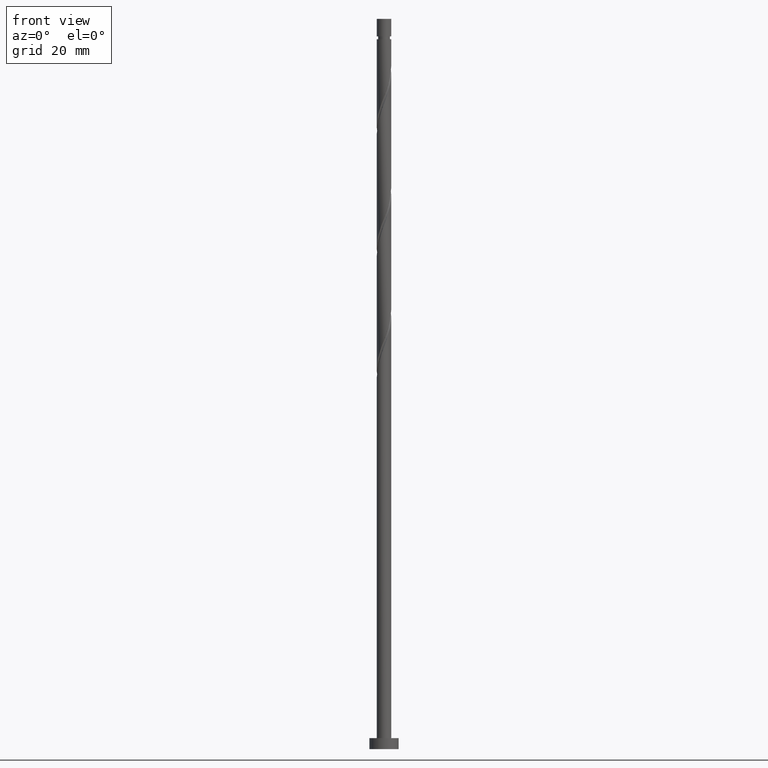
[diagram: clean part render]
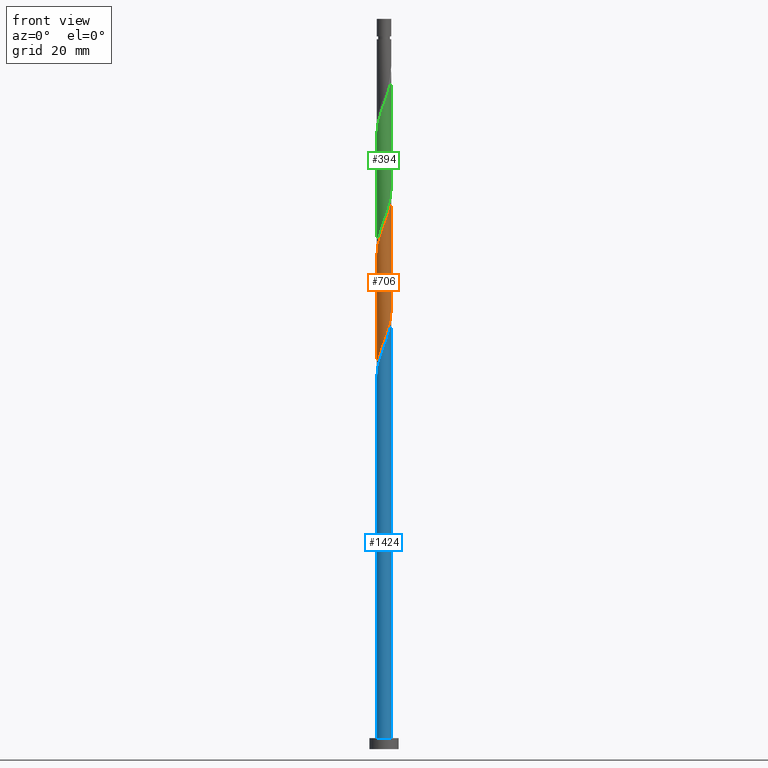
[diagram: same view with three faces highlighted in distinct colors, each labeled with its STEP entity id]
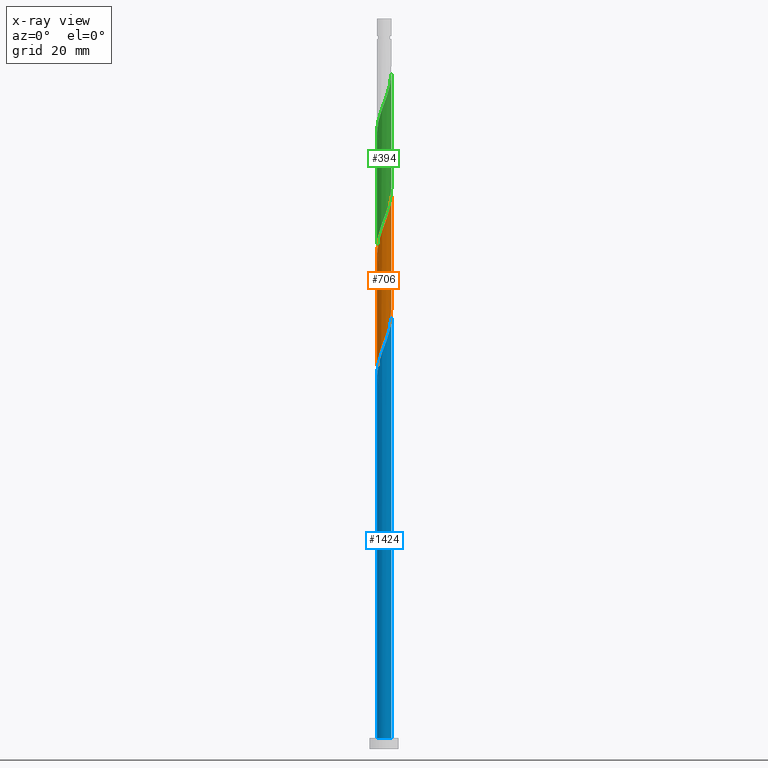
[diagram: x-ray of the same camera — body ghosted, the three highlighted faces saturated]
A machine part, front view with three faces highlighted in distinct colors.
The next image is the same camera in x-ray (body ghosted, the three faces saturated) — at least one of them is partly hidden behind the body in this view.
Their STEP definitions:

[orange] entity #706 — the highlighted cylindrical surface (edge-blend (fillet) strip) has radius 2 mm, axis along (-0, -0, -1).
#69 = EDGE_CURVE ( 'NONE', #420, #1318, #720, .T. ) ;
#105 = CARTESIAN_POINT ( 'NONE',  ( 0.1399560795713519490, -2.012397032465270019, 143.7130290469707177 ) ) ;
#115 = ORIENTED_EDGE ( 'NONE', *, *, #445, .T. ) ;
#129 = CARTESIAN_POINT ( 'NONE',  ( 1.521943481029064404, -1.324015695162690243, 147.8796957136374033 ) ) ;
#226 = CARTESIAN_POINT ( 'NONE',  ( -1.790205940182200139, -0.8917189533347237296, 137.4630290469706893 ) ) ;
#245 = CARTESIAN_POINT ( 'NONE',  ( -2.000000000000000444, -0.06148390331534520775, 103.9675371679866913 ) ) ;
#247 = CARTESIAN_POINT ( 'NONE',  ( 0.6560338701139447615, -1.907602967534735017, 145.1019179358596318 ) ) ;
#255 = CARTESIAN_POINT ( 'NONE',  ( -2.000000000000002220, 4.067429368664605239E-15, 135.0105735028717504 ) ) ;
#264 = CARTESIAN_POINT ( 'NONE',  ( -2.000000000000003997, -0.2010075630518353140, 135.5439998720609935 ) ) ;
#341 = VERTEX_POINT ( 'NONE', #1520 ) ;
#382 = CARTESIAN_POINT ( 'NONE',  ( -0.1399560795713533645, -2.012397032465267355, 111.7685846025262606 ) ) ;
#405 = ORIENTED_EDGE ( 'NONE', *, *, #1484, .F. ) ;
#410 = CARTESIAN_POINT ( 'NONE',  ( -1.498412303996177641, -1.324673758792283218, 138.8519179358595750 ) ) ;
#411 = CARTESIAN_POINT ( 'NONE',  ( 1.790205940182196809, -0.8917189533347242847, 118.0185846025262464 ) ) ;
#420 = VERTEX_POINT ( 'NONE', #1224 ) ;
#445 = EDGE_CURVE ( 'NONE', #528, #1318, #1110, .T. ) ;
#496 = CARTESIAN_POINT ( 'NONE',  ( -0.3979949748426488410, -1.959999999999999964, 111.0741401580817893 ) ) ;
#499 = ORIENTED_EDGE ( 'NONE', *, *, #1592, .F. ) ;
#503 = CARTESIAN_POINT ( 'NONE',  ( -1.996223298870949847, -0.1228517034671581104, 104.1296957136373322 ) ) ;
#505 = CARTESIAN_POINT ( 'NONE',  ( -0.6353262412077195220, -1.896407278838825983, 141.6296957136373749 ) ) ;
#526 = CARTESIAN_POINT ( 'NONE',  ( 1.324673758792283218, -1.498412303996177863, 147.1852512691929178 ) ) ;
#528 = VERTEX_POINT ( 'NONE', #736 ) ;
#546 = DIRECTION ( 'NONE',  ( -0.000000000000000000, -0.000000000000000000, -1.000000000000000000 ) ) ;
#547 = DIRECTION ( 'NONE',  ( -0.000000000000000000, -0.000000000000000000, -1.000000000000000000 ) ) ;
#554 = LINE ( 'NONE', #1487, #848 ) ;
#556 = DIRECTION ( 'NONE',  ( -0.000000000000000000, -0.000000000000000000, -1.000000000000000000 ) ) ;
#629 = CARTESIAN_POINT ( 'NONE',  ( -1.127404036555501810, -1.672808912829662820, 108.9908068247484891 ) ) ;
#632 = CARTESIAN_POINT ( 'NONE',  ( -1.907602967534735017, -0.6560338701139448725, 136.7685846025262606 ) ) ;
#640 = CARTESIAN_POINT ( 'NONE',  ( 1.127404036555501810, -1.672808912829665484, 146.4908068247484323 ) ) ;
#648 = CARTESIAN_POINT ( 'NONE',  ( -1.667354236715039129, -1.104504345536226451, 106.9074734914151179 ) ) ;
#650 = CARTESIAN_POINT ( 'NONE',  ( -0.8849929959097677656, -1.812764992401017849, 140.9352512691928894 ) ) ;
#656 = CARTESIAN_POINT ( 'NONE',  ( 1.980049565276634782, -0.3856594865056713894, 150.6574734914150895 ) ) ;
#663 = CARTESIAN_POINT ( 'NONE',  ( 1.896407278838825983, -0.6353262412077195220, 149.9630290469706893 ) ) ;
#664 = CARTESIAN_POINT ( 'NONE',  ( 2.000000000000000888, -0.2010075630518416978, 119.9376137774359705 ) ) ;
#706 = ADVANCED_FACE ( 'NONE', ( #1362 ), #1086, .T. ) ;
#720 =( BOUNDED_CURVE ( )  B_SPLINE_CURVE ( 2, ( #1514, #664, #1200, #1749, #411, #735, #881, #1669, #841, #907, #1713, #753, #923, #382, #496, #916, #1466, #629, #1018, #1027, #648, #1567, #1166, #1033, #503, #245, #1734 ),
 .UNSPECIFIED., .F., .T. ) 
 B_SPLINE_CURVE_WITH_KNOTS ( ( 3, 2, 2, 2, 2, 2, 2, 2, 2, 2, 2, 2, 2, 3 ),
 ( 0.8045317669814462391, 0.8125000000000000000, 0.8229166666666666297, 0.8333333333333333703, 0.8437500000000000000, 0.8541666666666666297, 0.8645833333333333703, 0.8750000000000000000, 0.8854166666666666297, 0.8958333333333333703, 0.9062500000000000000, 0.9166666666666666297, 0.9270833333333333703, 0.9295317669814463502 ),
 .UNSPECIFIED. ) 
 CURVE ( )  GEOMETRIC_REPRESENTATION_ITEM ( )  RATIONAL_B_SPLINE_CURVE ( ( 0.9062941362546530488, 0.9031415850403572421, 0.9090909090909328194, 0.9013135103398510761, 0.9090909090909328194, 0.9013135103398510761, 0.9090909090909328194, 0.9013135103398510761, 0.9090909090909328194, 0.9013135103398510761, 0.9090909090909328194, 0.9013135103398510761, 0.9090909090909328194, 0.9013135103398510761, 0.9090909090909328194, 0.9013135103398510761, 0.9090909090909328194, 0.9013135103398510761, 0.9090909090909328194, 0.9013135103398510761, 0.9090909090909328194, 0.9013135103398510761, 0.9090909090909328194, 0.9013135103398510761, 0.9090909090909328194, 0.9072628343904264314, 0.9062941362546529378 ) ) 
 REPRESENTATION_ITEM ( '' )  );
#735 = CARTESIAN_POINT ( 'NONE',  ( 1.672808912829662153, -1.127404036555502254, 117.3241401580817893 ) ) ;
#736 = CARTESIAN_POINT ( 'NONE',  ( -2.000000000000002220, 4.067429368664605239E-15, 135.0105735028717504 ) ) ;
#753 = CARTESIAN_POINT ( 'NONE',  ( 0.3856594865056683918, -1.980049565276633228, 113.1574734914151463 ) ) ;
#766 = CARTESIAN_POINT ( 'NONE',  ( 2.000000000000002665, -0.06148390331534327874, 151.5140764815102727 ) ) ;
#795 =( BOUNDED_CURVE ( )  B_SPLINE_CURVE ( 2, ( #255, #264, #1439, #632, #226, #1324, #410, #1585, #1199, #650, #505, #1736, #1170, #105, #1176, #247, #1748, #640, #526, #129, #801, #1620, #663, #656, #1614, #766, #1295 ),
 .UNSPECIFIED., .F., .T. ) 
 B_SPLINE_CURVE_WITH_KNOTS ( ( 3, 2, 2, 2, 2, 2, 2, 2, 2, 2, 2, 2, 2, 3 ),
 ( 0.3045317669814460171, 0.3125000000000000000, 0.3229166666666666297, 0.3333333333333333703, 0.3437500000000000000, 0.3541666666666666297, 0.3645833333333333703, 0.3750000000000000000, 0.3854166666666666297, 0.3958333333333333703, 0.4062500000000000000, 0.4166666666666666297, 0.4270833333333333703, 0.4295317669814465167 ),
 .UNSPECIFIED. ) 
 CURVE ( )  GEOMETRIC_REPRESENTATION_ITEM ( )  RATIONAL_B_SPLINE_CURVE ( ( 0.9062941362546574897, 0.9031415850403614609, 0.9090909090909370383, 0.9013135103398555170, 0.9090909090909370383, 0.9013135103398555170, 0.9090909090909370383, 0.9013135103398555170, 0.9090909090909370383, 0.9013135103398555170, 0.9090909090909370383, 0.9013135103398555170, 0.9090909090909370383, 0.9013135103398555170, 0.9090909090909370383, 0.9013135103398555170, 0.9090909090909370383, 0.9013135103398555170, 0.9090909090909370383, 0.9013135103398555170, 0.9090909090909370383, 0.9013135103398555170, 0.9090909090909370383, 0.9013135103398555170, 0.9090909090909370383, 0.9072628343904306503, 0.9062941362546571566 ) ) 
 REPRESENTATION_ITEM ( '' )  );
#801 = CARTESIAN_POINT ( 'NONE',  ( 1.667354236715040683, -1.104504345536229559, 148.5741401580818604 ) ) ;
#802 = ORIENTED_EDGE ( 'NONE', *, *, #69, .F. ) ;
#841 = CARTESIAN_POINT ( 'NONE',  ( 1.104504345536225784, -1.667354236715039795, 115.2408068247484891 ) ) ;
#848 = VECTOR ( 'NONE', #547, 1000.000000000000000 ) ;
#881 = CARTESIAN_POINT ( 'NONE',  ( 1.498412303996174977, -1.324673758792282774, 116.6296957136373607 ) ) ;
#907 = CARTESIAN_POINT ( 'NONE',  ( 0.8849929959097652121, -1.812764992401016295, 114.5463623803040321 ) ) ;
#916 = CARTESIAN_POINT ( 'NONE',  ( -0.6560338701139453166, -1.907602967534732574, 110.3796957136373464 ) ) ;
#923 = CARTESIAN_POINT ( 'NONE',  ( 0.1228517034671575414, -1.996223298870949847, 112.4630290469706893 ) ) ;
#979 = CARTESIAN_POINT ( 'NONE',  ( -2.000000000000000000, 0.000000000000000000, 200.0000000000000000 ) ) ;
#1018 = CARTESIAN_POINT ( 'NONE',  ( -1.324673758792282330, -1.498412303996174977, 108.2963623803040463 ) ) ;
#1027 = CARTESIAN_POINT ( 'NONE',  ( -1.521943481029063516, -1.324015695162687134, 107.6019179358595750 ) ) ;
#1033 = CARTESIAN_POINT ( 'NONE',  ( -1.980049565276633228, -0.3856594865056690025, 104.8241401580818177 ) ) ;
#1080 = DIRECTION ( 'NONE',  ( -1.000000000000000000, 0.000000000000000000, 0.000000000000000000 ) ) ;
#1086 = CYLINDRICAL_SURFACE ( 'NONE', #1378, 2.000000000000000000 ) ;
#1110 = LINE ( 'NONE', #979, #1701 ) ;
#1166 = CARTESIAN_POINT ( 'NONE',  ( -1.896407278838823762, -0.6353262412077173016, 105.5185846025262322 ) ) ;
#1170 = CARTESIAN_POINT ( 'NONE',  ( -0.1228517034671592761, -1.996223298870952290, 143.0185846025262322 ) ) ;
#1176 = CARTESIAN_POINT ( 'NONE',  ( 0.3979949748426485634, -1.960000000000002185, 144.4074734914151747 ) ) ;
#1199 = CARTESIAN_POINT ( 'NONE',  ( -1.104504345536228227, -1.667354236715041571, 140.2408068247485176 ) ) ;
#1200 = CARTESIAN_POINT ( 'NONE',  ( 1.959999999999999964, -0.3979949748426489520, 119.4074734914151179 ) ) ;
#1204 = CARTESIAN_POINT ( 'NONE',  ( 0.000000000000000000, 0.000000000000000000, 200.0000000000000000 ) ) ;
#1224 = CARTESIAN_POINT ( 'NONE',  ( 2.000000000000000000, 2.676727415407970149E-15, 120.4710401466252279 ) ) ;
#1273 = EDGE_LOOP ( 'NONE', ( #499, #405, #115, #802 ) ) ;
#1295 = CARTESIAN_POINT ( 'NONE',  ( 2.000000000000002220, 2.467374433197279073E-16, 151.6772401695384644 ) ) ;
#1318 = VERTEX_POINT ( 'NONE', #1575 ) ;
#1324 = CARTESIAN_POINT ( 'NONE',  ( -1.672808912829665484, -1.127404036555502032, 138.1574734914151747 ) ) ;
#1362 = FACE_OUTER_BOUND ( 'NONE', #1273, .T. ) ;
#1378 = AXIS2_PLACEMENT_3D ( 'NONE', #1204, #546, #1080 ) ;
#1439 = CARTESIAN_POINT ( 'NONE',  ( -1.960000000000002185, -0.3979949748426487854, 136.0741401580818035 ) ) ;
#1466 = CARTESIAN_POINT ( 'NONE',  ( -0.8917189533347235075, -1.790205940182196809, 109.6852512691929178 ) ) ;
#1484 = EDGE_CURVE ( 'NONE', #528, #341, #795, .T. ) ;
#1487 = CARTESIAN_POINT ( 'NONE',  ( 2.000000000000000000, 2.449293598294706414E-16, 200.0000000000000000 ) ) ;
#1514 = CARTESIAN_POINT ( 'NONE',  ( 2.000000000000000000, 2.676727415407970149E-15, 120.4710401466252279 ) ) ;
#1520 = CARTESIAN_POINT ( 'NONE',  ( 2.000000000000002220, 2.467374433197279566E-16, 151.6772401695384644 ) ) ;
#1567 = CARTESIAN_POINT ( 'NONE',  ( -1.812764992401016295, -0.8849929959097652121, 106.2130290469706750 ) ) ;
#1575 = CARTESIAN_POINT ( 'NONE',  ( -2.000000000000000444, 2.415036187644621267E-15, 103.8043734799585280 ) ) ;
#1585 = CARTESIAN_POINT ( 'NONE',  ( -1.324015695162690243, -1.521943481029064404, 139.5463623803040321 ) ) ;
#1592 = EDGE_CURVE ( 'NONE', #341, #420, #554, .T. ) ;
#1614 = CARTESIAN_POINT ( 'NONE',  ( 1.996223298870952290, -0.1228517034671603031, 151.3519179358595750 ) ) ;
#1620 = CARTESIAN_POINT ( 'NONE',  ( 1.812764992401017405, -0.8849929959097677656, 149.2685846025262322 ) ) ;
#1669 = CARTESIAN_POINT ( 'NONE',  ( 1.324015695162687134, -1.521943481029063516, 115.9352512691929178 ) ) ;
#1701 = VECTOR ( 'NONE', #556, 1000.000000000000000 ) ;
#1713 = CARTESIAN_POINT ( 'NONE',  ( 0.6353262412077170795, -1.896407278838823762, 113.8519179358595608 ) ) ;
#1734 = CARTESIAN_POINT ( 'NONE',  ( -2.000000000000000444, 2.415036187644621267E-15, 103.8043734799585280 ) ) ;
#1736 = CARTESIAN_POINT ( 'NONE',  ( -0.3856594865056704458, -1.980049565276634782, 142.3241401580817467 ) ) ;
#1748 = CARTESIAN_POINT ( 'NONE',  ( 0.8917189533347231745, -1.790205940182200361, 145.7963623803040605 ) ) ;
#1749 = CARTESIAN_POINT ( 'NONE',  ( 1.907602967534731908, -0.6560338701139465378, 118.7130290469706893 ) ) ;

[blue] entity #1424 — the highlighted cylindrical surface (edge-blend (fillet) strip) has radius 2 mm, axis along (-0, -0, -1).
#81 = CYLINDRICAL_SURFACE ( 'NONE', #1480, 2.000000000000000000 ) ;
#104 = CARTESIAN_POINT ( 'NONE',  ( -2.000000000000000000, 0.000000000000000000, 3.000000000000000000 ) ) ;
#123 = CARTESIAN_POINT ( 'NONE',  ( 1.980049565276634782, -0.3856594865056713894, 117.3241401580818035 ) ) ;
#165 = CARTESIAN_POINT ( 'NONE',  ( 1.996223298870952290, -0.1228517034671603031, 118.0185846025262322 ) ) ;
#176 = CIRCLE ( 'NONE', #293, 2.000000000000000000 ) ;
#237 = CARTESIAN_POINT ( 'NONE',  ( -1.672808912829665484, -1.127404036555502032, 104.8241401580818177 ) ) ;
#246 = CARTESIAN_POINT ( 'NONE',  ( 2.000000000000000000, 2.449293598294706414E-16, 3.000000000000000000 ) ) ;
#293 = AXIS2_PLACEMENT_3D ( 'NONE', #1660, #891, #1689 ) ;
#348 = ORIENTED_EDGE ( 'NONE', *, *, #507, .T. ) ;
#374 = CARTESIAN_POINT ( 'NONE',  ( -2.000000000000002665, -1.525286013249227260E-15, 101.6772401695384360 ) ) ;
#385 = CARTESIAN_POINT ( 'NONE',  ( 0.6560338701139447615, -1.907602967534735017, 111.7685846025262748 ) ) ;
#429 = ORIENTED_EDGE ( 'NONE', *, *, #470, .F. ) ;
#430 = LINE ( 'NONE', #827, #1352 ) ;
#435 = LINE ( 'NONE', #1106, #1504 ) ;
#470 = EDGE_CURVE ( 'NONE', #928, #633, #430, .T. ) ;
#507 = EDGE_CURVE ( 'NONE', #670, #633, #176, .T. ) ;
#513 = CARTESIAN_POINT ( 'NONE',  ( -0.6353262412077195220, -1.896407278838825983, 108.2963623803040321 ) ) ;
#538 = CARTESIAN_POINT ( 'NONE',  ( -1.907602967534735017, -0.6560338701139448725, 103.4352512691929178 ) ) ;
#583 = DIRECTION ( 'NONE',  ( -0.000000000000000000, -0.000000000000000000, -1.000000000000000000 ) ) ;
#607 = CARTESIAN_POINT ( 'NONE',  ( 0.000000000000000000, 0.000000000000000000, 200.0000000000000000 ) ) ;
#633 = VERTEX_POINT ( 'NONE', #246 ) ;
#670 = VERTEX_POINT ( 'NONE', #104 ) ;
#726 = DIRECTION ( 'NONE',  ( -1.000000000000000000, 0.000000000000000000, 0.000000000000000000 ) ) ;
#750 = CARTESIAN_POINT ( 'NONE',  ( 2.000000000000002220, 2.467374433197279566E-16, 118.3439068362050648 ) ) ;
#776 = ORIENTED_EDGE ( 'NONE', *, *, #1527, .F. ) ;
#791 = CARTESIAN_POINT ( 'NONE',  ( 1.896407278838825983, -0.6353262412077195220, 116.6296957136373891 ) ) ;
#807 = DIRECTION ( 'NONE',  ( -0.000000000000000000, -0.000000000000000000, -1.000000000000000000 ) ) ;
#825 = CARTESIAN_POINT ( 'NONE',  ( 2.000000000000001776, -0.06148390331535513037, 118.1807431481769157 ) ) ;
#827 = CARTESIAN_POINT ( 'NONE',  ( 2.000000000000000000, 2.449293598294706414E-16, 200.0000000000000000 ) ) ;
#891 = DIRECTION ( 'NONE',  ( 0.000000000000000000, 0.000000000000000000, 1.000000000000000000 ) ) ;
#909 = CARTESIAN_POINT ( 'NONE',  ( -2.000000000000001332, -0.2010075630518465273, 102.2106665387276649 ) ) ;
#918 = CARTESIAN_POINT ( 'NONE',  ( 1.324673758792283218, -1.498412303996177863, 113.8519179358595750 ) ) ;
#925 = CARTESIAN_POINT ( 'NONE',  ( -1.324015695162690243, -1.521943481029064404, 106.2130290469706893 ) ) ;
#928 = VERTEX_POINT ( 'NONE', #750 ) ;
#933 = CARTESIAN_POINT ( 'NONE',  ( -0.1228517034671592761, -1.996223298870952290, 109.6852512691929462 ) ) ;
#988 = ORIENTED_EDGE ( 'NONE', *, *, #1570, .T. ) ;
#1049 = CARTESIAN_POINT ( 'NONE',  ( 0.1399560795713519490, -2.012397032465270019, 110.3796957136373749 ) ) ;
#1059 = CARTESIAN_POINT ( 'NONE',  ( -1.498412303996177641, -1.324673758792283218, 105.5185846025262748 ) ) ;
#1072 = CARTESIAN_POINT ( 'NONE',  ( 1.127404036555501810, -1.672808912829665484, 113.1574734914151463 ) ) ;
#1087 =( BOUNDED_CURVE ( )  B_SPLINE_CURVE ( 2, ( #374, #909, #1193, #538, #1450, #237, #1059, #925, #1307, #1724, #513, #1743, #933, #1049, #1596, #385, #1317, #1072, #918, #1459, #1607, #1468, #791, #123, #165, #825, #1088 ),
 .UNSPECIFIED., .F., .T. ) 
 B_SPLINE_CURVE_WITH_KNOTS ( ( 3, 2, 2, 2, 2, 2, 2, 2, 2, 2, 2, 2, 2, 3 ),
 ( 0.05453176698144646811, 0.06250000000000000000, 0.07291666666666662966, 0.08333333333333337034, 0.09375000000000000000, 0.1041666666666666297, 0.1145833333333333703, 0.1250000000000000000, 0.1354166666666666297, 0.1458333333333333703, 0.1562500000000000000, 0.1666666666666666297, 0.1770833333333333703, 0.1795317669814460448 ),
 .UNSPECIFIED. ) 
 CURVE ( )  GEOMETRIC_REPRESENTATION_ITEM ( )  RATIONAL_B_SPLINE_CURVE ( ( 0.9062941362546572677, 0.9031415850403617940, 0.9090909090909370383, 0.9013135103398555170, 0.9090909090909370383, 0.9013135103398555170, 0.9090909090909370383, 0.9013135103398555170, 0.9090909090909370383, 0.9013135103398555170, 0.9090909090909370383, 0.9013135103398555170, 0.9090909090909370383, 0.9013135103398555170, 0.9090909090909370383, 0.9013135103398555170, 0.9090909090909370383, 0.9013135103398555170, 0.9090909090909370383, 0.9013135103398555170, 0.9090909090909370383, 0.9013135103398555170, 0.9090909090909370383, 0.9013135103398555170, 0.9090909090909370383, 0.9072628343904309833, 0.9062941362546574897 ) ) 
 REPRESENTATION_ITEM ( '' )  );
#1088 = CARTESIAN_POINT ( 'NONE',  ( 2.000000000000002220, 2.467374433197279566E-16, 118.3439068362050648 ) ) ;
#1106 = CARTESIAN_POINT ( 'NONE',  ( -2.000000000000000000, 0.000000000000000000, 200.0000000000000000 ) ) ;
#1154 = FACE_OUTER_BOUND ( 'NONE', #1299, .T. ) ;
#1193 = CARTESIAN_POINT ( 'NONE',  ( -1.960000000000002185, -0.3979949748426487854, 102.7408068247484607 ) ) ;
#1299 = EDGE_LOOP ( 'NONE', ( #429, #776, #988, #348 ) ) ;
#1307 = CARTESIAN_POINT ( 'NONE',  ( -1.104504345536228227, -1.667354236715041571, 106.9074734914151605 ) ) ;
#1317 = CARTESIAN_POINT ( 'NONE',  ( 0.8917189533347231745, -1.790205940182200361, 112.4630290469707461 ) ) ;
#1331 = CARTESIAN_POINT ( 'NONE',  ( -2.000000000000002665, -1.525286013249227260E-15, 101.6772401695384360 ) ) ;
#1352 = VECTOR ( 'NONE', #583, 1000.000000000000000 ) ;
#1424 = ADVANCED_FACE ( 'NONE', ( #1154 ), #81, .T. ) ;
#1450 = CARTESIAN_POINT ( 'NONE',  ( -1.790205940182200139, -0.8917189533347237296, 104.1296957136373464 ) ) ;
#1459 = CARTESIAN_POINT ( 'NONE',  ( 1.521943481029064404, -1.324015695162690243, 114.5463623803040178 ) ) ;
#1462 = VERTEX_POINT ( 'NONE', #1331 ) ;
#1468 = CARTESIAN_POINT ( 'NONE',  ( 1.812764992401017405, -0.8849929959097677656, 115.9352512691929036 ) ) ;
#1480 = AXIS2_PLACEMENT_3D ( 'NONE', #607, #1695, #726 ) ;
#1504 = VECTOR ( 'NONE', #807, 1000.000000000000000 ) ;
#1527 = EDGE_CURVE ( 'NONE', #1462, #928, #1087, .T. ) ;
#1570 = EDGE_CURVE ( 'NONE', #1462, #670, #435, .T. ) ;
#1596 = CARTESIAN_POINT ( 'NONE',  ( 0.3979949748426485634, -1.960000000000002185, 111.0741401580818177 ) ) ;
#1607 = CARTESIAN_POINT ( 'NONE',  ( 1.667354236715040683, -1.104504345536229559, 115.2408068247484891 ) ) ;
#1660 = CARTESIAN_POINT ( 'NONE',  ( 0.000000000000000000, 0.000000000000000000, 3.000000000000000000 ) ) ;
#1689 = DIRECTION ( 'NONE',  ( 1.000000000000000000, 0.000000000000000000, 0.000000000000000000 ) ) ;
#1695 = DIRECTION ( 'NONE',  ( -0.000000000000000000, -0.000000000000000000, -1.000000000000000000 ) ) ;
#1724 = CARTESIAN_POINT ( 'NONE',  ( -0.8849929959097677656, -1.812764992401017849, 107.6019179358596176 ) ) ;
#1743 = CARTESIAN_POINT ( 'NONE',  ( -0.3856594865056704458, -1.980049565276634782, 108.9908068247484749 ) ) ;

[green] entity #394 — the highlighted cylindrical surface (edge-blend (fillet) strip) has radius 2 mm, axis along (-0, -0, -1).
#9 = VERTEX_POINT ( 'NONE', #1217 ) ;
#10 = CARTESIAN_POINT ( 'NONE',  ( -0.6560338701139453166, -1.907602967534732574, 143.7130290469706893 ) ) ;
#23 = CARTESIAN_POINT ( 'NONE',  ( -1.960000000000002185, -0.3979949748426487854, 169.4074734914151463 ) ) ;
#32 = CARTESIAN_POINT ( 'NONE',  ( -0.8849929959097677656, -1.812764992401017849, 174.2685846025262322 ) ) ;
#35 = CARTESIAN_POINT ( 'NONE',  ( -0.8917189533347235075, -1.790205940182196809, 143.0185846025262038 ) ) ;
#42 = CARTESIAN_POINT ( 'NONE',  ( 0.1399560795713519490, -2.012397032465270019, 177.0463623803040321 ) ) ;
#53 = CARTESIAN_POINT ( 'NONE',  ( 2.000000000000002665, -4.112290721995465450E-16, 185.0105735028718072 ) ) ;
#95 = LINE ( 'NONE', #1167, #408 ) ;
#118 = VERTEX_POINT ( 'NONE', #1605 ) ;
#150 = CARTESIAN_POINT ( 'NONE',  ( -2.000000000000000000, -0.06148390331534799719, 137.3008705013199915 ) ) ;
#174 = CARTESIAN_POINT ( 'NONE',  ( -1.907602967534735017, -0.6560338701139448725, 170.1019179358595466 ) ) ;
#175 = CARTESIAN_POINT ( 'NONE',  ( 1.959999999999999964, -0.3979949748426489520, 152.7408068247483754 ) ) ;
#267 = DIRECTION ( 'NONE',  ( -0.000000000000000000, -0.000000000000000000, -1.000000000000000000 ) ) ;
#275 = CARTESIAN_POINT ( 'NONE',  ( 1.896407278838825983, -0.6353262412077195220, 183.2963623803040889 ) ) ;
#285 = CARTESIAN_POINT ( 'NONE',  ( -0.1228517034671592761, -1.996223298870952290, 176.3519179358596034 ) ) ;
#287 = CARTESIAN_POINT ( 'NONE',  ( -1.812764992401016295, -0.8849929959097652121, 139.5463623803040605 ) ) ;
#296 = CARTESIAN_POINT ( 'NONE',  ( 0.1228517034671575414, -1.996223298870949847, 145.7963623803040605 ) ) ;
#373 = DIRECTION ( 'NONE',  ( -0.000000000000000000, -0.000000000000000000, -1.000000000000000000 ) ) ;
#394 = ADVANCED_FACE ( 'NONE', ( #1297 ), #1051, .T. ) ;
#395 = LINE ( 'NONE', #1452, #936 ) ;
#406 = EDGE_CURVE ( 'NONE', #1067, #118, #395, .T. ) ;
#408 = VECTOR ( 'NONE', #373, 1000.000000000000000 ) ;
#412 = CARTESIAN_POINT ( 'NONE',  ( 1.790205940182196809, -0.8917189533347242847, 151.3519179358595750 ) ) ;
#418 = CARTESIAN_POINT ( 'NONE',  ( -1.672808912829665484, -1.127404036555502032, 171.4908068247484607 ) ) ;
#421 = CARTESIAN_POINT ( 'NONE',  ( -1.127404036555501810, -1.672808912829662820, 142.3241401580817751 ) ) ;
#427 = CARTESIAN_POINT ( 'NONE',  ( 0.3979949748426485634, -1.960000000000002185, 177.7408068247485176 ) ) ;
#438 = EDGE_CURVE ( 'NONE', #118, #1260, #1473, .T. ) ;
#439 = CARTESIAN_POINT ( 'NONE',  ( -1.896407278838823762, -0.6353262412077173016, 138.8519179358595750 ) ) ;
#444 = CARTESIAN_POINT ( 'NONE',  ( -0.3856594865056704458, -1.980049565276634782, 175.6574734914151463 ) ) ;
#483 = ORIENTED_EDGE ( 'NONE', *, *, #1615, .F. ) ;
#517 = AXIS2_PLACEMENT_3D ( 'NONE', #1717, #267, #1038 ) ;
#548 = CARTESIAN_POINT ( 'NONE',  ( 1.498412303996174977, -1.324673758792282774, 149.9630290469706893 ) ) ;
#565 = CARTESIAN_POINT ( 'NONE',  ( 2.000000000000000444, -0.2010075630518444734, 153.2709471107692991 ) ) ;
#573 = CARTESIAN_POINT ( 'NONE',  ( -1.980049565276633228, -0.3856594865056690025, 138.1574734914151463 ) ) ;
#582 = CARTESIAN_POINT ( 'NONE',  ( 1.324673758792283218, -1.498412303996177863, 180.5185846025262890 ) ) ;
#634 = EDGE_CURVE ( 'NONE', #9, #1260, #95, .T. ) ;
#682 = CARTESIAN_POINT ( 'NONE',  ( 1.907602967534731908, -0.6560338701139465378, 152.0463623803040036 ) ) ;
#683 = CARTESIAN_POINT ( 'NONE',  ( -2.000000000000000000, -3.170202302047428231E-15, 137.1377068132918851 ) ) ;
#695 = CARTESIAN_POINT ( 'NONE',  ( -1.790205940182200139, -0.8917189533347237296, 170.7963623803040036 ) ) ;
#697 = CARTESIAN_POINT ( 'NONE',  ( -0.3979949748426488410, -1.959999999999999964, 144.4074734914151179 ) ) ;
#784 = ORIENTED_EDGE ( 'NONE', *, *, #634, .T. ) ;
#809 = CARTESIAN_POINT ( 'NONE',  ( 0.3856594865056683918, -1.980049565276633228, 146.4908068247485176 ) ) ;
#816 = CARTESIAN_POINT ( 'NONE',  ( 0.8917189533347231745, -1.790205940182200361, 179.1296957136374033 ) ) ;
#819 = CARTESIAN_POINT ( 'NONE',  ( -1.996223298870949847, -0.1228517034671581104, 137.4630290469706893 ) ) ;
#834 = EDGE_LOOP ( 'NONE', ( #860, #483, #784, #1554 ) ) ;
#842 = CARTESIAN_POINT ( 'NONE',  ( 2.000000000000000000, 2.676727415407970149E-15, 153.8043734799585991 ) ) ;
#860 = ORIENTED_EDGE ( 'NONE', *, *, #406, .F. ) ;
#880 = CARTESIAN_POINT ( 'NONE',  ( 1.996223298870952290, -0.1228517034671603031, 184.6852512691929462 ) ) ;
#936 = VECTOR ( 'NONE', #1308, 1000.000000000000000 ) ;
#942 = CARTESIAN_POINT ( 'NONE',  ( 1.667354236715040683, -1.104504345536229559, 181.9074734914151747 ) ) ;
#943 = CARTESIAN_POINT ( 'NONE',  ( 0.8849929959097652121, -1.812764992401016295, 147.8796957136373464 ) ) ;
#950 = CARTESIAN_POINT ( 'NONE',  ( -1.324015695162690243, -1.521943481029064404, 172.8796957136373180 ) ) ;
#951 = CARTESIAN_POINT ( 'NONE',  ( -1.324673758792282330, -1.498412303996174977, 141.6296957136374033 ) ) ;
#957 = CARTESIAN_POINT ( 'NONE',  ( 1.127404036555501810, -1.672808912829665484, 179.8241401580818319 ) ) ;
#969 = CARTESIAN_POINT ( 'NONE',  ( -2.000000000000002665, 1.943991977670583183E-15, 168.3439068362050932 ) ) ;
#971 = CARTESIAN_POINT ( 'NONE',  ( -1.521943481029063516, -1.324015695162687134, 140.9352512691928894 ) ) ;
#976 = CARTESIAN_POINT ( 'NONE',  ( 0.6560338701139447615, -1.907602967534735017, 178.4352512691929746 ) ) ;
#1038 = DIRECTION ( 'NONE',  ( -1.000000000000000000, 0.000000000000000000, 0.000000000000000000 ) ) ;
#1051 = CYLINDRICAL_SURFACE ( 'NONE', #517, 2.000000000000000000 ) ;
#1067 = VERTEX_POINT ( 'NONE', #1472 ) ;
#1095 = CARTESIAN_POINT ( 'NONE',  ( -1.104504345536228227, -1.667354236715041571, 173.5741401580818035 ) ) ;
#1096 =( BOUNDED_CURVE ( )  B_SPLINE_CURVE ( 2, ( #969, #1375, #23, #174, #695, #418, #1230, #950, #1095, #32, #1495, #444, #285, #42, #427, #976, #816, #957, #582, #1521, #942, #1505, #275, #1160, #880, #1694, #53 ),
 .UNSPECIFIED., .F., .T. ) 
 B_SPLINE_CURVE_WITH_KNOTS ( ( 3, 2, 2, 2, 2, 2, 2, 2, 2, 2, 2, 2, 2, 3 ),
 ( 0.5545317669814461281, 0.5625000000000000000, 0.5729166666666667407, 0.5833333333333332593, 0.5937500000000000000, 0.6041666666666667407, 0.6145833333333332593, 0.6250000000000000000, 0.6354166666666667407, 0.6458333333333332593, 0.6562500000000000000, 0.6666666666666667407, 0.6770833333333332593, 0.6795317669814466832 ),
 .UNSPECIFIED. ) 
 CURVE ( )  GEOMETRIC_REPRESENTATION_ITEM ( )  RATIONAL_B_SPLINE_CURVE ( ( 0.9062941362546576007, 0.9031415850403615719, 0.9090909090909370383, 0.9013135103398555170, 0.9090909090909370383, 0.9013135103398555170, 0.9090909090909370383, 0.9013135103398555170, 0.9090909090909370383, 0.9013135103398555170, 0.9090909090909370383, 0.9013135103398555170, 0.9090909090909370383, 0.9013135103398555170, 0.9090909090909370383, 0.9013135103398555170, 0.9090909090909370383, 0.9013135103398555170, 0.9090909090909370383, 0.9013135103398555170, 0.9090909090909370383, 0.9013135103398555170, 0.9090909090909370383, 0.9013135103398555170, 0.9090909090909370383, 0.9072628343904304282, 0.9062941362546570456 ) ) 
 REPRESENTATION_ITEM ( '' )  );
#1098 = CARTESIAN_POINT ( 'NONE',  ( 1.104504345536225784, -1.667354236715039795, 148.5741401580818319 ) ) ;
#1160 = CARTESIAN_POINT ( 'NONE',  ( 1.980049565276634782, -0.3856594865056713894, 183.9908068247485460 ) ) ;
#1167 = CARTESIAN_POINT ( 'NONE',  ( -2.000000000000000000, 0.000000000000000000, 200.0000000000000000 ) ) ;
#1207 = CARTESIAN_POINT ( 'NONE',  ( -0.1399560795713533645, -2.012397032465267355, 145.1019179358595750 ) ) ;
#1217 = CARTESIAN_POINT ( 'NONE',  ( -2.000000000000002665, 1.943991977670583183E-15, 168.3439068362050932 ) ) ;
#1218 = CARTESIAN_POINT ( 'NONE',  ( 1.324015695162687134, -1.521943481029063516, 149.2685846025262322 ) ) ;
#1230 = CARTESIAN_POINT ( 'NONE',  ( -1.498412303996177641, -1.324673758792283218, 172.1852512691928894 ) ) ;
#1260 = VERTEX_POINT ( 'NONE', #683 ) ;
#1297 = FACE_OUTER_BOUND ( 'NONE', #834, .T. ) ;
#1308 = DIRECTION ( 'NONE',  ( -0.000000000000000000, -0.000000000000000000, -1.000000000000000000 ) ) ;
#1340 = CARTESIAN_POINT ( 'NONE',  ( 1.672808912829662153, -1.127404036555502254, 150.6574734914151463 ) ) ;
#1375 = CARTESIAN_POINT ( 'NONE',  ( -2.000000000000003553, -0.2010075630518402545, 168.8773332053943648 ) ) ;
#1452 = CARTESIAN_POINT ( 'NONE',  ( 2.000000000000000000, 2.449293598294706414E-16, 200.0000000000000000 ) ) ;
#1472 = CARTESIAN_POINT ( 'NONE',  ( 2.000000000000002665, -4.112290721995465450E-16, 185.0105735028718072 ) ) ;
#1473 =( BOUNDED_CURVE ( )  B_SPLINE_CURVE ( 2, ( #842, #565, #175, #682, #412, #1340, #548, #1218, #1098, #943, #1488, #809, #296, #1207, #697, #10, #35, #421, #951, #971, #1497, #287, #439, #573, #819, #150, #1516 ),
 .UNSPECIFIED., .F., .T. ) 
 B_SPLINE_CURVE_WITH_KNOTS ( ( 3, 2, 2, 2, 2, 2, 2, 2, 2, 2, 2, 2, 2, 3 ),
 ( 0.5545317669814463502, 0.5625000000000000000, 0.5729166666666666297, 0.5833333333333333703, 0.5937500000000000000, 0.6041666666666666297, 0.6145833333333333703, 0.6250000000000000000, 0.6354166666666666297, 0.6458333333333333703, 0.6562500000000000000, 0.6666666666666666297, 0.6770833333333333703, 0.6795317669814462391 ),
 .UNSPECIFIED. ) 
 CURVE ( )  GEOMETRIC_REPRESENTATION_ITEM ( )  RATIONAL_B_SPLINE_CURVE ( ( 0.9062941362546529378, 0.9031415850403572421, 0.9090909090909328194, 0.9013135103398510761, 0.9090909090909328194, 0.9013135103398510761, 0.9090909090909328194, 0.9013135103398510761, 0.9090909090909328194, 0.9013135103398510761, 0.9090909090909328194, 0.9013135103398510761, 0.9090909090909328194, 0.9013135103398510761, 0.9090909090909328194, 0.9013135103398510761, 0.9090909090909328194, 0.9013135103398510761, 0.9090909090909328194, 0.9013135103398510761, 0.9090909090909328194, 0.9013135103398510761, 0.9090909090909328194, 0.9013135103398510761, 0.9090909090909328194, 0.9072628343904265424, 0.9062941362546530488 ) ) 
 REPRESENTATION_ITEM ( '' )  );
#1488 = CARTESIAN_POINT ( 'NONE',  ( 0.6353262412077170795, -1.896407278838823762, 147.1852512691929462 ) ) ;
#1495 = CARTESIAN_POINT ( 'NONE',  ( -0.6353262412077195220, -1.896407278838825983, 174.9630290469706893 ) ) ;
#1497 = CARTESIAN_POINT ( 'NONE',  ( -1.667354236715039129, -1.104504345536226451, 140.2408068247484891 ) ) ;
#1505 = CARTESIAN_POINT ( 'NONE',  ( 1.812764992401017405, -0.8849929959097677656, 182.6019179358596034 ) ) ;
#1516 = CARTESIAN_POINT ( 'NONE',  ( -2.000000000000000000, -3.170202302047428231E-15, 137.1377068132918851 ) ) ;
#1521 = CARTESIAN_POINT ( 'NONE',  ( 1.521943481029064404, -1.324015695162690243, 181.2130290469706893 ) ) ;
#1554 = ORIENTED_EDGE ( 'NONE', *, *, #438, .F. ) ;
#1605 = CARTESIAN_POINT ( 'NONE',  ( 2.000000000000000000, 2.676727415407970149E-15, 153.8043734799585707 ) ) ;
#1615 = EDGE_CURVE ( 'NONE', #9, #1067, #1096, .T. ) ;
#1694 = CARTESIAN_POINT ( 'NONE',  ( 2.000000000000003553, -0.06148390331533696435, 184.8474098148436440 ) ) ;
#1717 = CARTESIAN_POINT ( 'NONE',  ( 0.000000000000000000, 0.000000000000000000, 200.0000000000000000 ) ) ;